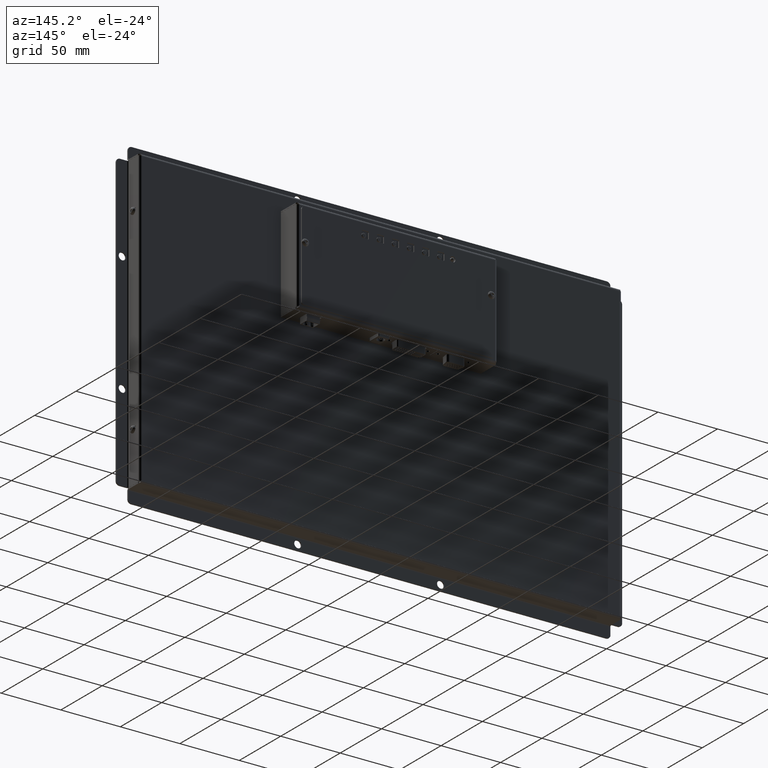
[diagram: clean part render]
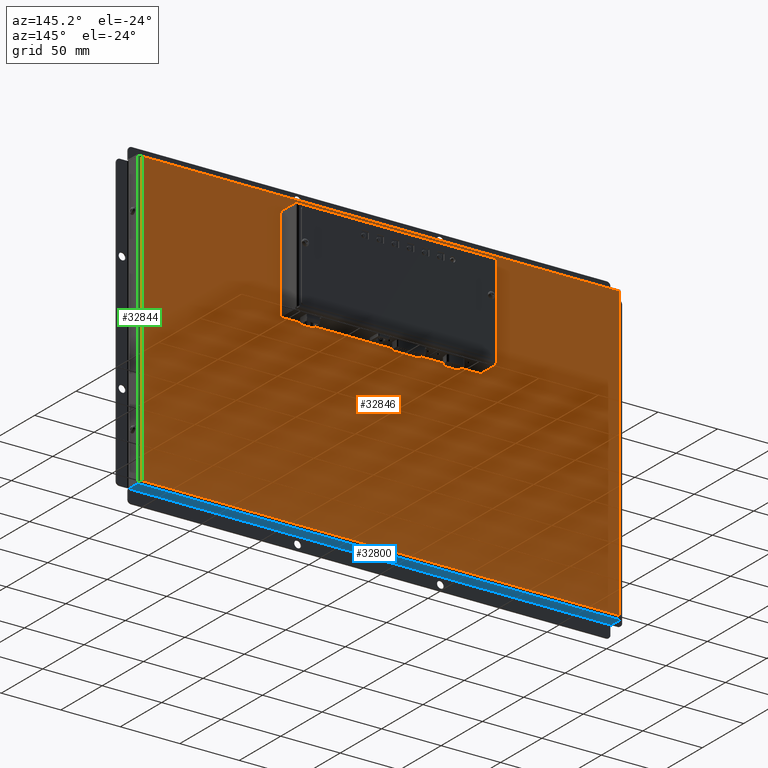
[diagram: same view with three faces highlighted in distinct colors, each labeled with its STEP entity id]
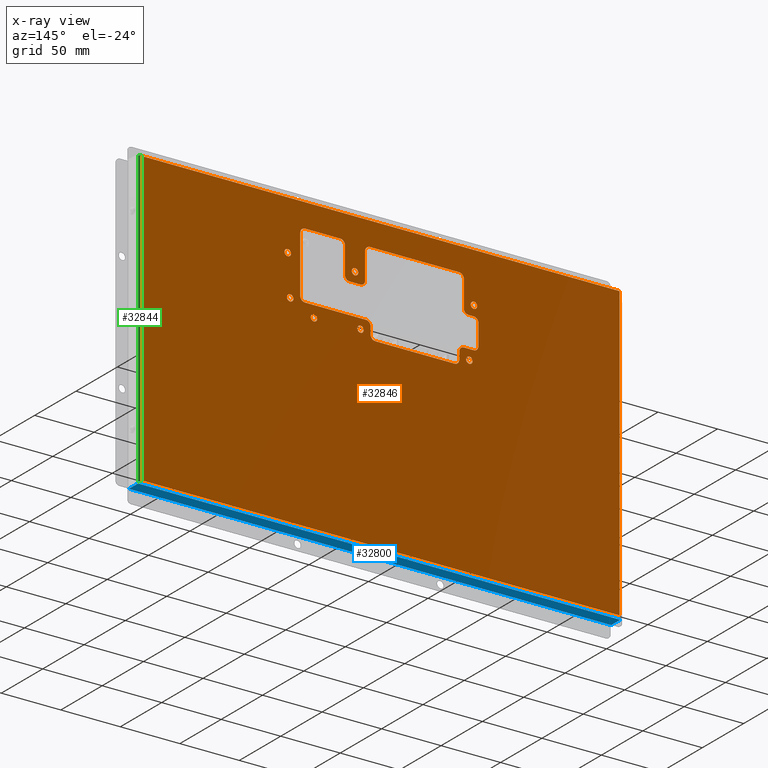
[diagram: x-ray of the same camera — body ghosted, the three highlighted faces saturated]
A machine part, auxiliary view with three faces highlighted in distinct colors.
The next image is the same camera in x-ray (body ghosted, the three faces saturated) — at least one of them is partly hidden behind the body in this view.
Their STEP definitions:

[orange] entity #32846 — the highlighted planar face has unit normal (0, 1, 0).
#1981=FACE_BOUND('',#5391,.T.);
#1982=FACE_BOUND('',#5392,.T.);
#1983=FACE_BOUND('',#5393,.T.);
#1984=FACE_BOUND('',#5394,.T.);
#1985=FACE_BOUND('',#5395,.T.);
#1986=FACE_BOUND('',#5396,.T.);
#1987=FACE_BOUND('',#5397,.T.);
#1988=FACE_BOUND('',#5398,.T.);
#2310=PLANE('',#35282);
#3501=FACE_OUTER_BOUND('',#5390,.T.);
#5390=EDGE_LOOP('',(#23546,#23547,#23548,#23549));
#5391=EDGE_LOOP('',(#23550,#23551));
#5392=EDGE_LOOP('',(#23552,#23553));
#5393=EDGE_LOOP('',(#23554,#23555));
#5394=EDGE_LOOP('',(#23556,#23557));
#5395=EDGE_LOOP('',(#23558,#23559));
#5396=EDGE_LOOP('',(#23560,#23561));
#5397=EDGE_LOOP('',(#23562,#23563));
#5398=EDGE_LOOP('',(#23564,#23565,#23566,#23567,#23568,#23569,#23570,#23571,
#23572,#23573,#23574,#23575,#23576,#23577,#23578,#23579,#23580,#23581,#23582,
#23583,#23584,#23585,#23586,#23587,#23588,#23589,#23590,#23591));
#7349=LINE('',#47318,#10488);
#7356=LINE('',#47336,#10495);
#7366=LINE('',#47418,#10505);
#7370=LINE('',#47429,#10509);
#7373=LINE('',#47433,#10512);
#7375=LINE('',#47442,#10514);
#7379=LINE('',#47454,#10518);
#7383=LINE('',#47466,#10522);
#7387=LINE('',#47478,#10526);
#7391=LINE('',#47490,#10530);
#7395=LINE('',#47502,#10534);
#7399=LINE('',#47514,#10538);
#7403=LINE('',#47526,#10542);
#7407=LINE('',#47538,#10546);
#7583=LINE('',#48155,#10722);
#7591=LINE('',#48441,#10730);
#7596=LINE('',#48581,#10735);
#7597=LINE('',#48583,#10736);
#10488=VECTOR('',#38070,10.);
#10495=VECTOR('',#38085,10.);
#10505=VECTOR('',#38173,10.);
#10509=VECTOR('',#38185,10.);
#10512=VECTOR('',#38190,10.);
#10514=VECTOR('',#38200,10.);
#10518=VECTOR('',#38212,10.);
#10522=VECTOR('',#38224,10.);
#10526=VECTOR('',#38236,10.);
#10530=VECTOR('',#38248,10.);
#10534=VECTOR('',#38260,10.);
#10538=VECTOR('',#38272,10.);
#10542=VECTOR('',#38284,10.);
#10546=VECTOR('',#38296,10.);
#10722=VECTOR('',#38832,10.);
#10730=VECTOR('',#38850,10.);
#10735=VECTOR('',#38863,10.);
#10736=VECTOR('',#38866,10.);
#13625=CIRCLE('',#35004,4.);
#13628=CIRCLE('',#35009,4.);
#13629=CIRCLE('',#35012,2.705);
#13630=CIRCLE('',#35013,2.705);
#13633=CIRCLE('',#35017,2.705);
#13634=CIRCLE('',#35018,2.705);
#13637=CIRCLE('',#35022,2.705);
#13638=CIRCLE('',#35023,2.705);
#13641=CIRCLE('',#35027,2.705);
#13642=CIRCLE('',#35028,2.705);
#13645=CIRCLE('',#35032,2.705);
#13646=CIRCLE('',#35033,2.705);
#13649=CIRCLE('',#35037,2.705);
#13650=CIRCLE('',#35038,2.705);
#13653=CIRCLE('',#35042,2.705);
#13654=CIRCLE('',#35043,2.705);
#13657=CIRCLE('',#35047,4.);
#13659=CIRCLE('',#35051,4.00000000000001);
#13661=CIRCLE('',#35056,4.);
#13663=CIRCLE('',#35060,4.);
#13665=CIRCLE('',#35064,4.);
#13667=CIRCLE('',#35068,4.);
#13669=CIRCLE('',#35072,4.);
#13671=CIRCLE('',#35076,4.);
#13673=CIRCLE('',#35080,4.);
#13675=CIRCLE('',#35084,4.);
#13677=CIRCLE('',#35088,4.);
#13679=CIRCLE('',#35092,4.);
#14918=VERTEX_POINT('',#47308);
#14919=VERTEX_POINT('',#47309);
#14922=VERTEX_POINT('',#47317);
#14926=VERTEX_POINT('',#47326);
#14927=VERTEX_POINT('',#47328);
#14929=VERTEX_POINT('',#47334);
#14930=VERTEX_POINT('',#47338);
#14931=VERTEX_POINT('',#47339);
#14934=VERTEX_POINT('',#47348);
#14935=VERTEX_POINT('',#47349);
#14938=VERTEX_POINT('',#47358);
#14939=VERTEX_POINT('',#47359);
#14942=VERTEX_POINT('',#47368);
#14943=VERTEX_POINT('',#47369);
#14946=VERTEX_POINT('',#47378);
#14947=VERTEX_POINT('',#47379);
#14950=VERTEX_POINT('',#47388);
#14951=VERTEX_POINT('',#47389);
#14954=VERTEX_POINT('',#47398);
#14955=VERTEX_POINT('',#47399);
#14958=VERTEX_POINT('',#47408);
#14959=VERTEX_POINT('',#47409);
#14962=VERTEX_POINT('',#47417);
#14964=VERTEX_POINT('',#47423);
#14966=VERTEX_POINT('',#47435);
#14968=VERTEX_POINT('',#47441);
#14970=VERTEX_POINT('',#47447);
#14972=VERTEX_POINT('',#47453);
#14974=VERTEX_POINT('',#47459);
#14976=VERTEX_POINT('',#47465);
#14978=VERTEX_POINT('',#47471);
#14980=VERTEX_POINT('',#47477);
#14982=VERTEX_POINT('',#47483);
#14984=VERTEX_POINT('',#47489);
#14986=VERTEX_POINT('',#47495);
#14988=VERTEX_POINT('',#47501);
#14990=VERTEX_POINT('',#47507);
#14992=VERTEX_POINT('',#47513);
#14994=VERTEX_POINT('',#47519);
#14996=VERTEX_POINT('',#47525);
#14998=VERTEX_POINT('',#47531);
#15000=VERTEX_POINT('',#47537);
#15164=VERTEX_POINT('',#48128);
#15166=VERTEX_POINT('',#48147);
#15171=VERTEX_POINT('',#48416);
#15172=VERTEX_POINT('',#48433);
#18056=EDGE_CURVE('',#14918,#14919,#13625,.T.);
#18060=EDGE_CURVE('',#14922,#14919,#7349,.T.);
#18065=EDGE_CURVE('',#14926,#14927,#13628,.T.);
#18069=EDGE_CURVE('',#14926,#14929,#7356,.T.);
#18070=EDGE_CURVE('',#14930,#14931,#13629,.T.);
#18071=EDGE_CURVE('',#14931,#14930,#13630,.T.);
#18075=EDGE_CURVE('',#14934,#14935,#13633,.T.);
#18076=EDGE_CURVE('',#14935,#14934,#13634,.T.);
#18080=EDGE_CURVE('',#14938,#14939,#13637,.T.);
#18081=EDGE_CURVE('',#14939,#14938,#13638,.T.);
#18085=EDGE_CURVE('',#14942,#14943,#13641,.T.);
#18086=EDGE_CURVE('',#14943,#14942,#13642,.T.);
#18090=EDGE_CURVE('',#14946,#14947,#13645,.T.);
#18091=EDGE_CURVE('',#14947,#14946,#13646,.T.);
#18095=EDGE_CURVE('',#14950,#14951,#13649,.T.);
#18096=EDGE_CURVE('',#14951,#14950,#13650,.T.);
#18100=EDGE_CURVE('',#14954,#14955,#13653,.T.);
#18101=EDGE_CURVE('',#14955,#14954,#13654,.T.);
#18105=EDGE_CURVE('',#14958,#14959,#13657,.T.);
#18109=EDGE_CURVE('',#14959,#14962,#7366,.T.);
#18112=EDGE_CURVE('',#14962,#14964,#13659,.T.);
#18115=EDGE_CURVE('',#14964,#14927,#7370,.T.);
#18118=EDGE_CURVE('',#14918,#14958,#7373,.T.);
#18119=EDGE_CURVE('',#14966,#14922,#13661,.T.);
#18122=EDGE_CURVE('',#14968,#14966,#7375,.T.);
#18125=EDGE_CURVE('',#14970,#14968,#13663,.T.);
#18128=EDGE_CURVE('',#14972,#14970,#7379,.T.);
#18131=EDGE_CURVE('',#14974,#14972,#13665,.T.);
#18134=EDGE_CURVE('',#14976,#14974,#7383,.T.);
#18137=EDGE_CURVE('',#14978,#14976,#13667,.T.);
#18140=EDGE_CURVE('',#14980,#14978,#7387,.T.);
#18143=EDGE_CURVE('',#14982,#14980,#13669,.T.);
#18146=EDGE_CURVE('',#14984,#14982,#7391,.T.);
#18149=EDGE_CURVE('',#14986,#14984,#13671,.T.);
#18152=EDGE_CURVE('',#14988,#14986,#7395,.T.);
#18155=EDGE_CURVE('',#14990,#14988,#13673,.T.);
#18158=EDGE_CURVE('',#14992,#14990,#7399,.T.);
#18161=EDGE_CURVE('',#14994,#14992,#13675,.T.);
#18164=EDGE_CURVE('',#14996,#14994,#7403,.T.);
#18167=EDGE_CURVE('',#14998,#14996,#13677,.T.);
#18170=EDGE_CURVE('',#15000,#14998,#7407,.T.);
#18173=EDGE_CURVE('',#14929,#15000,#13679,.T.);
#18434=EDGE_CURVE('',#15164,#15166,#7583,.T.);
#18455=EDGE_CURVE('',#15171,#15172,#7591,.T.);
#18465=EDGE_CURVE('',#15172,#15164,#7596,.T.);
#18466=EDGE_CURVE('',#15166,#15171,#7597,.T.);
#23546=ORIENTED_EDGE('',*,*,#18465,.T.);
#23547=ORIENTED_EDGE('',*,*,#18434,.T.);
#23548=ORIENTED_EDGE('',*,*,#18466,.T.);
#23549=ORIENTED_EDGE('',*,*,#18455,.T.);
#23550=ORIENTED_EDGE('',*,*,#18070,.T.);
#23551=ORIENTED_EDGE('',*,*,#18071,.T.);
#23552=ORIENTED_EDGE('',*,*,#18075,.T.);
#23553=ORIENTED_EDGE('',*,*,#18076,.T.);
#23554=ORIENTED_EDGE('',*,*,#18080,.T.);
#23555=ORIENTED_EDGE('',*,*,#18081,.T.);
#23556=ORIENTED_EDGE('',*,*,#18085,.T.);
#23557=ORIENTED_EDGE('',*,*,#18086,.T.);
#23558=ORIENTED_EDGE('',*,*,#18090,.T.);
#23559=ORIENTED_EDGE('',*,*,#18091,.T.);
#23560=ORIENTED_EDGE('',*,*,#18095,.T.);
#23561=ORIENTED_EDGE('',*,*,#18096,.T.);
#23562=ORIENTED_EDGE('',*,*,#18100,.T.);
#23563=ORIENTED_EDGE('',*,*,#18101,.T.);
#23564=ORIENTED_EDGE('',*,*,#18119,.T.);
#23565=ORIENTED_EDGE('',*,*,#18060,.T.);
#23566=ORIENTED_EDGE('',*,*,#18056,.F.);
#23567=ORIENTED_EDGE('',*,*,#18118,.T.);
#23568=ORIENTED_EDGE('',*,*,#18105,.T.);
#23569=ORIENTED_EDGE('',*,*,#18109,.T.);
#23570=ORIENTED_EDGE('',*,*,#18112,.T.);
#23571=ORIENTED_EDGE('',*,*,#18115,.T.);
#23572=ORIENTED_EDGE('',*,*,#18065,.F.);
#23573=ORIENTED_EDGE('',*,*,#18069,.T.);
#23574=ORIENTED_EDGE('',*,*,#18173,.T.);
#23575=ORIENTED_EDGE('',*,*,#18170,.T.);
#23576=ORIENTED_EDGE('',*,*,#18167,.T.);
#23577=ORIENTED_EDGE('',*,*,#18164,.T.);
#23578=ORIENTED_EDGE('',*,*,#18161,.T.);
#23579=ORIENTED_EDGE('',*,*,#18158,.T.);
#23580=ORIENTED_EDGE('',*,*,#18155,.T.);
#23581=ORIENTED_EDGE('',*,*,#18152,.T.);
#23582=ORIENTED_EDGE('',*,*,#18149,.T.);
#23583=ORIENTED_EDGE('',*,*,#18146,.T.);
#23584=ORIENTED_EDGE('',*,*,#18143,.T.);
#23585=ORIENTED_EDGE('',*,*,#18140,.T.);
#23586=ORIENTED_EDGE('',*,*,#18137,.T.);
#23587=ORIENTED_EDGE('',*,*,#18134,.T.);
#23588=ORIENTED_EDGE('',*,*,#18131,.T.);
#23589=ORIENTED_EDGE('',*,*,#18128,.T.);
#23590=ORIENTED_EDGE('',*,*,#18125,.T.);
#23591=ORIENTED_EDGE('',*,*,#18122,.T.);
#32846=ADVANCED_FACE('',(#3501,#1981,#1982,#1983,#1984,#1985,#1986,#1987,
#1988),#2310,.T.);
#35004=AXIS2_PLACEMENT_3D('',#47310,#38062,#38063);
#35009=AXIS2_PLACEMENT_3D('',#47329,#38078,#38079);
#35012=AXIS2_PLACEMENT_3D('',#47340,#38088,#38089);
#35013=AXIS2_PLACEMENT_3D('',#47341,#38090,#38091);
#35017=AXIS2_PLACEMENT_3D('',#47350,#38099,#38100);
#35018=AXIS2_PLACEMENT_3D('',#47351,#38101,#38102);
#35022=AXIS2_PLACEMENT_3D('',#47360,#38110,#38111);
#35023=AXIS2_PLACEMENT_3D('',#47361,#38112,#38113);
#35027=AXIS2_PLACEMENT_3D('',#47370,#38121,#38122);
#35028=AXIS2_PLACEMENT_3D('',#47371,#38123,#38124);
#35032=AXIS2_PLACEMENT_3D('',#47380,#38132,#38133);
#35033=AXIS2_PLACEMENT_3D('',#47381,#38134,#38135);
#35037=AXIS2_PLACEMENT_3D('',#47390,#38143,#38144);
#35038=AXIS2_PLACEMENT_3D('',#47391,#38145,#38146);
#35042=AXIS2_PLACEMENT_3D('',#47400,#38154,#38155);
#35043=AXIS2_PLACEMENT_3D('',#47401,#38156,#38157);
#35047=AXIS2_PLACEMENT_3D('',#47410,#38165,#38166);
#35051=AXIS2_PLACEMENT_3D('',#47424,#38178,#38179);
#35056=AXIS2_PLACEMENT_3D('',#47436,#38193,#38194);
#35060=AXIS2_PLACEMENT_3D('',#47448,#38205,#38206);
#35064=AXIS2_PLACEMENT_3D('',#47460,#38217,#38218);
#35068=AXIS2_PLACEMENT_3D('',#47472,#38229,#38230);
#35072=AXIS2_PLACEMENT_3D('',#47484,#38241,#38242);
#35076=AXIS2_PLACEMENT_3D('',#47496,#38253,#38254);
#35080=AXIS2_PLACEMENT_3D('',#47508,#38265,#38266);
#35084=AXIS2_PLACEMENT_3D('',#47520,#38277,#38278);
#35088=AXIS2_PLACEMENT_3D('',#47532,#38289,#38290);
#35092=AXIS2_PLACEMENT_3D('',#47543,#38301,#38302);
#35282=AXIS2_PLACEMENT_3D('',#48585,#38869,#38870);
#38062=DIRECTION('center_axis',(0.,0.,1.));
#38063=DIRECTION('ref_axis',(0.707106781186549,0.707106781186546,0.));
#38070=DIRECTION('',(1.,-6.02154860813605E-16,0.));
#38078=DIRECTION('center_axis',(0.,0.,1.));
#38079=DIRECTION('ref_axis',(-0.707106781186545,0.70710678118655,0.));
#38085=DIRECTION('',(1.,-6.02154860813605E-16,0.));
#38088=DIRECTION('center_axis',(0.,0.,-1.));
#38089=DIRECTION('ref_axis',(1.,0.,0.));
#38090=DIRECTION('center_axis',(0.,0.,-1.));
#38091=DIRECTION('ref_axis',(1.,0.,0.));
#38099=DIRECTION('center_axis',(0.,0.,-1.));
#38100=DIRECTION('ref_axis',(1.,0.,0.));
#38101=DIRECTION('center_axis',(0.,0.,-1.));
#38102=DIRECTION('ref_axis',(1.,0.,0.));
#38110=DIRECTION('center_axis',(0.,0.,-1.));
#38111=DIRECTION('ref_axis',(1.,0.,0.));
#38112=DIRECTION('center_axis',(0.,0.,-1.));
#38113=DIRECTION('ref_axis',(1.,0.,0.));
#38121=DIRECTION('center_axis',(0.,0.,-1.));
#38122=DIRECTION('ref_axis',(1.,0.,0.));
#38123=DIRECTION('center_axis',(0.,0.,-1.));
#38124=DIRECTION('ref_axis',(1.,0.,0.));
#38132=DIRECTION('center_axis',(0.,0.,-1.));
#38133=DIRECTION('ref_axis',(1.,0.,0.));
#38134=DIRECTION('center_axis',(0.,0.,-1.));
#38135=DIRECTION('ref_axis',(1.,0.,0.));
#38143=DIRECTION('center_axis',(0.,0.,-1.));
#38144=DIRECTION('ref_axis',(1.,0.,0.));
#38145=DIRECTION('center_axis',(0.,0.,-1.));
#38146=DIRECTION('ref_axis',(1.,0.,0.));
#38154=DIRECTION('center_axis',(0.,0.,-1.));
#38155=DIRECTION('ref_axis',(1.,0.,0.));
#38156=DIRECTION('center_axis',(0.,0.,-1.));
#38157=DIRECTION('ref_axis',(1.,0.,0.));
#38165=DIRECTION('center_axis',(0.,0.,1.));
#38166=DIRECTION('ref_axis',(-1.,0.,0.));
#38173=DIRECTION('',(1.,0.,0.));
#38178=DIRECTION('center_axis',(0.,0.,1.));
#38179=DIRECTION('ref_axis',(1.66533453693773E-15,-1.,0.));
#38185=DIRECTION('',(0.,1.,0.));
#38190=DIRECTION('',(5.04646829375071E-16,-1.,0.));
#38193=DIRECTION('center_axis',(0.,0.,-1.));
#38194=DIRECTION('ref_axis',(0.,1.,0.));
#38200=DIRECTION('',(-1.11022302462523E-14,1.,0.));
#38205=DIRECTION('center_axis',(0.,0.,-1.));
#38206=DIRECTION('ref_axis',(-1.,0.,0.));
#38212=DIRECTION('',(-1.,-1.73811823816071E-16,0.));
#38217=DIRECTION('center_axis',(0.,0.,1.));
#38218=DIRECTION('ref_axis',(-1.,0.,0.));
#38224=DIRECTION('',(-7.16272919113008E-16,1.,0.));
#38229=DIRECTION('center_axis',(0.,0.,-1.));
#38230=DIRECTION('ref_axis',(-1.,-1.11022302462516E-15,0.));
#38236=DIRECTION('',(-1.,-4.67462326157968E-16,0.));
#38241=DIRECTION('center_axis',(0.,0.,-1.));
#38242=DIRECTION('ref_axis',(0.,-1.,0.));
#38248=DIRECTION('',(-1.43254583822601E-15,-1.,0.));
#38253=DIRECTION('center_axis',(0.,0.,1.));
#38254=DIRECTION('ref_axis',(2.22044604925031E-15,-1.,0.));
#38260=DIRECTION('',(-1.,0.,0.));
#38265=DIRECTION('center_axis',(0.,0.,-1.));
#38266=DIRECTION('ref_axis',(0.,-1.,0.));
#38272=DIRECTION('',(0.,-1.,0.));
#38277=DIRECTION('center_axis',(0.,0.,-1.));
#38278=DIRECTION('ref_axis',(1.,0.,0.));
#38284=DIRECTION('',(1.,2.06553120860501E-15,0.));
#38289=DIRECTION('center_axis',(0.,0.,1.));
#38290=DIRECTION('ref_axis',(1.,0.,0.));
#38296=DIRECTION('',(-3.98286286861046E-16,-1.,0.));
#38301=DIRECTION('center_axis',(0.,0.,-1.));
#38302=DIRECTION('ref_axis',(1.,0.,0.));
#38832=DIRECTION('',(-1.,0.,0.));
#38850=DIRECTION('',(1.,8.81020131134656E-17,0.));
#38863=DIRECTION('',(0.,1.,0.));
#38866=DIRECTION('',(0.,-1.,0.));
#38869=DIRECTION('center_axis',(0.,0.,1.));
#38870=DIRECTION('ref_axis',(1.,0.,0.));
#47308=CARTESIAN_POINT('',(-30.2000000000035,98.2999999999999,1.));
#47309=CARTESIAN_POINT('',(-34.2000000000035,102.3,1.));
#47310=CARTESIAN_POINT('Origin',(-34.2000000000035,98.2999999999999,1.));
#47317=CARTESIAN_POINT('',(-63.7000000000035,102.3,1.));
#47318=CARTESIAN_POINT('',(-31.9675561272377,102.3,1.));
#47326=CARTESIAN_POINT('',(-9.20000000000353,102.3,1.));
#47328=CARTESIAN_POINT('',(-13.2000000000035,98.2999999999999,1.));
#47329=CARTESIAN_POINT('Origin',(-9.20000000000353,98.2999999999999,1.));
#47334=CARTESIAN_POINT('',(65.6999999999986,102.3,1.));
#47336=CARTESIAN_POINT('',(-31.9675561272377,102.3,1.));
#47338=CARTESIAN_POINT('',(-75.4950000000014,80.5000000000001,1.));
#47339=CARTESIAN_POINT('',(-80.9050000000014,80.5000000000001,1.));
#47340=CARTESIAN_POINT('Origin',(-78.2000000000014,80.5000000000001,1.));
#47341=CARTESIAN_POINT('Origin',(-78.2000000000014,80.5000000000001,1.));
#47348=CARTESIAN_POINT('',(80.9049999999986,80.5000000000001,1.));
#47349=CARTESIAN_POINT('',(75.4949999999986,80.5000000000001,1.));
#47350=CARTESIAN_POINT('Origin',(78.1999999999986,80.5000000000001,1.));
#47351=CARTESIAN_POINT('Origin',(78.1999999999986,80.5000000000001,1.));
#47358=CARTESIAN_POINT('',(-53.4950000000003,36.7999999999994,1.));
#47359=CARTESIAN_POINT('',(-58.9050000000003,36.7999999999994,1.));
#47360=CARTESIAN_POINT('Origin',(-56.2000000000003,36.7999999999994,1.));
#47361=CARTESIAN_POINT('Origin',(-56.2000000000003,36.7999999999994,1.));
#47368=CARTESIAN_POINT('',(-73.4950000000035,46.7999999999994,1.));
#47369=CARTESIAN_POINT('',(-78.9050000000035,46.7999999999994,1.));
#47370=CARTESIAN_POINT('Origin',(-76.2000000000035,46.7999999999994,1.));
#47371=CARTESIAN_POINT('Origin',(-76.2000000000035,46.7999999999994,1.));
#47378=CARTESIAN_POINT('',(-14.3950000000033,38.1999999999994,1.));
#47379=CARTESIAN_POINT('',(-19.8050000000033,38.1999999999994,1.));
#47380=CARTESIAN_POINT('Origin',(-17.1000000000033,38.1999999999994,1.));
#47381=CARTESIAN_POINT('Origin',(-17.1000000000033,38.1999999999994,1.));
#47388=CARTESIAN_POINT('',(77.1049999999957,37.9999999999995,1.));
#47389=CARTESIAN_POINT('',(71.6949999999957,37.9999999999995,1.));
#47390=CARTESIAN_POINT('Origin',(74.3999999999957,37.9999999999995,1.));
#47391=CARTESIAN_POINT('Origin',(74.3999999999957,37.9999999999995,1.));
#47398=CARTESIAN_POINT('',(-18.9950000000035,80.3999999999999,1.));
#47399=CARTESIAN_POINT('',(-24.4050000000035,80.3999999999999,1.));
#47400=CARTESIAN_POINT('Origin',(-21.7000000000035,80.3999999999999,1.));
#47401=CARTESIAN_POINT('Origin',(-21.7000000000035,80.3999999999999,1.));
#47408=CARTESIAN_POINT('',(-30.2000000000035,75.8999999999999,1.));
#47409=CARTESIAN_POINT('',(-26.2000000000035,71.8999999999999,1.));
#47410=CARTESIAN_POINT('Origin',(-26.2000000000035,75.8999999999999,1.));
#47417=CARTESIAN_POINT('',(-17.2000000000035,71.8999999999999,1.));
#47418=CARTESIAN_POINT('',(-8.71755612723772,71.8999999999999,1.));
#47423=CARTESIAN_POINT('',(-13.2000000000035,75.8999999999999,1.));
#47424=CARTESIAN_POINT('Origin',(-17.2000000000035,75.8999999999999,1.));
#47429=CARTESIAN_POINT('',(-13.2000000000035,51.025,1.));
#47433=CARTESIAN_POINT('',(-30.2000000000035,37.825,1.));
#47435=CARTESIAN_POINT('',(-67.7000000000035,98.2999999999999,1.));
#47436=CARTESIAN_POINT('Origin',(-63.7000000000035,98.2999999999999,1.));
#47441=CARTESIAN_POINT('',(-67.7000000000035,50.4999999999994,1.));
#47442=CARTESIAN_POINT('',(-67.7000000000032,25.1249999999994,1.));
#47447=CARTESIAN_POINT('',(-63.7000000000035,46.4999999999994,1.));
#47448=CARTESIAN_POINT('Origin',(-63.7000000000035,50.4999999999994,1.));
#47453=CARTESIAN_POINT('',(-12.6000000000033,46.4999999999995,1.));
#47454=CARTESIAN_POINT('',(-6.4175561272376,46.4999999999995,1.));
#47459=CARTESIAN_POINT('',(-8.60000000000328,42.4999999999994,1.));
#47460=CARTESIAN_POINT('Origin',(-12.6000000000033,42.4999999999994,1.));
#47465=CARTESIAN_POINT('',(-8.60000000000328,36.2999999999995,1.));
#47466=CARTESIAN_POINT('',(-8.60000000000327,18.0249999999997,1.));
#47471=CARTESIAN_POINT('',(-4.60000000000328,32.2999999999995,1.));
#47472=CARTESIAN_POINT('Origin',(-4.60000000000329,36.2999999999995,1.));
#47477=CARTESIAN_POINT('',(61.8999999999957,32.2999999999995,1.));
#47478=CARTESIAN_POINT('',(30.8324438727619,32.2999999999995,1.));
#47483=CARTESIAN_POINT('',(65.8999999999957,36.2999999999995,1.));
#47484=CARTESIAN_POINT('Origin',(61.8999999999957,36.2999999999995,1.));
#47489=CARTESIAN_POINT('',(65.8999999999957,42.4999999999995,1.));
#47490=CARTESIAN_POINT('',(65.8999999999957,21.1249999999997,1.));
#47495=CARTESIAN_POINT('',(69.8999999999957,46.4999999999995,1.));
#47496=CARTESIAN_POINT('Origin',(69.8999999999957,42.4999999999995,1.));
#47501=CARTESIAN_POINT('',(77.9999999999985,46.4999999999995,1.));
#47502=CARTESIAN_POINT('',(38.8824438727633,46.4999999999995,1.));
#47507=CARTESIAN_POINT('',(81.9999999999985,50.4999999999995,1.));
#47508=CARTESIAN_POINT('Origin',(77.9999999999985,50.4999999999995,1.));
#47513=CARTESIAN_POINT('',(81.9999999999985,68.0000000000001,1.));
#47514=CARTESIAN_POINT('',(81.9999999999985,33.875,1.));
#47519=CARTESIAN_POINT('',(77.9999999999985,72.0000000000001,1.));
#47520=CARTESIAN_POINT('Origin',(77.9999999999985,68.0000000000001,1.));
#47525=CARTESIAN_POINT('',(73.6999999999986,72.0000000000001,1.));
#47526=CARTESIAN_POINT('',(36.7324438727633,72.,1.));
#47531=CARTESIAN_POINT('',(69.6999999999986,76.0000000000001,1.));
#47532=CARTESIAN_POINT('Origin',(73.6999999999986,76.0000000000001,1.));
#47537=CARTESIAN_POINT('',(69.6999999999986,98.2999999999999,1.));
#47538=CARTESIAN_POINT('',(69.6999999999986,49.0249999999999,1.));
#47543=CARTESIAN_POINT('Origin',(65.6999999999986,98.2999999999999,1.));
#48128=CARTESIAN_POINT('',(200.625,122.3,1.));
#48147=CARTESIAN_POINT('',(-200.625,122.3,1.));
#48155=CARTESIAN_POINT('',(100.694943872764,122.3,1.));
#48416=CARTESIAN_POINT('',(-200.625,-122.7,1.));
#48433=CARTESIAN_POINT('',(200.625,-122.7,1.));
#48441=CARTESIAN_POINT('',(-100.930056127236,-122.7,1.));
#48581=CARTESIAN_POINT('',(200.625,-61.475,1.));
#48583=CARTESIAN_POINT('',(-200.625,61.025,1.));
#48585=CARTESIAN_POINT('Origin',(-0.235112254471912,-0.249999999999987,
1.));

[blue] entity #32800 — the highlighted planar face has unit normal (0, -0, -1).
#2288=PLANE('',#35240);
#3455=FACE_OUTER_BOUND('',#5324,.T.);
#5324=EDGE_LOOP('',(#23248,#23249,#23250,#23251));
#7540=LINE('',#47954,#10679);
#7546=LINE('',#47967,#10685);
#7547=LINE('',#47969,#10686);
#7548=LINE('',#47970,#10687);
#10679=VECTOR('',#38723,10.);
#10685=VECTOR('',#38735,10.);
#10686=VECTOR('',#38736,10.);
#10687=VECTOR('',#38737,10.);
#15135=VERTEX_POINT('',#47945);
#15136=VERTEX_POINT('',#47949);
#15140=VERTEX_POINT('',#47966);
#15141=VERTEX_POINT('',#47968);
#18377=EDGE_CURVE('',#15135,#15136,#7540,.T.);
#18383=EDGE_CURVE('',#15140,#15136,#7546,.T.);
#18384=EDGE_CURVE('',#15140,#15141,#7547,.T.);
#18385=EDGE_CURVE('',#15141,#15135,#7548,.T.);
#23248=ORIENTED_EDGE('',*,*,#18377,.T.);
#23249=ORIENTED_EDGE('',*,*,#18383,.F.);
#23250=ORIENTED_EDGE('',*,*,#18384,.T.);
#23251=ORIENTED_EDGE('',*,*,#18385,.T.);
#32800=ADVANCED_FACE('',(#3455),#2288,.T.);
#35240=AXIS2_PLACEMENT_3D('',#47965,#38733,#38734);
#38723=DIRECTION('',(1.,8.77196548976972E-17,4.65805677104248E-34));
#38733=DIRECTION('center_axis',(8.77196548976972E-17,-1.,-8.57020736283933E-15));
#38734=DIRECTION('ref_axis',(1.,8.77196548976979E-17,-8.81020131134656E-17));
#38735=DIRECTION('',(5.46571335200077E-15,8.19857002800116E-15,-1.));
#38736=DIRECTION('',(-1.,-8.77196548976972E-17,3.37261047015213E-33));
#38737=DIRECTION('',(-5.46571335200075E-15,9.56499836600131E-15,-1.));
#47945=CARTESIAN_POINT('',(-202.625,-124.7,-12.));
#47949=CARTESIAN_POINT('',(202.625,-124.7,-12.));
#47954=CARTESIAN_POINT('',(101.3125,-124.7,-12.));
#47965=CARTESIAN_POINT('Origin',(1.89328028425507E-14,-124.7,-6.36902664470773));
#47966=CARTESIAN_POINT('',(202.625,-124.7,-1.00000000000007));
#47967=CARTESIAN_POINT('',(202.625,-124.7,-1.00000000000003));
#47968=CARTESIAN_POINT('',(-202.625,-124.7,-0.99999999999996));
#47969=CARTESIAN_POINT('',(2.73179647680909E-14,-124.7,-1.00000000000001));
#47970=CARTESIAN_POINT('',(-202.625,-124.7,-0.999999999999961));

[green] entity #32844 — the highlighted cylindrical surface (edge-blend (fillet) strip) has radius 2 mm, axis along (0, 0, -1).
#1699=B_SPLINE_CURVE_WITH_KNOTS('',3,(#48277,#48278,#48279,#48280),
 .UNSPECIFIED.,.F.,.F.,(4,4),(-1.,-0.763258696678558),.UNSPECIFIED.);
#1701=B_SPLINE_CURVE_WITH_KNOTS('',3,(#48331,#48332,#48333,#48334,#48335,
#48336,#48337),.UNSPECIFIED.,.F.,.F.,(4,3,4),(-0.763258696678558,-0.32711087001288,
0.),.UNSPECIFIED.);
#1705=B_SPLINE_CURVE_WITH_KNOTS('',3,(#48418,#48419,#48420,#48421,#48422,
#48423,#48424),.UNSPECIFIED.,.F.,.F.,(4,3,4),(-0.763258696678548,-0.327110870012867,
0.),.UNSPECIFIED.);
#1708=B_SPLINE_CURVE_WITH_KNOTS('',3,(#48484,#48485,#48486,#48487),
 .UNSPECIFIED.,.F.,.F.,(4,4),(-1.,-0.763258696678548),.UNSPECIFIED.);
#3499=FACE_OUTER_BOUND('',#5380,.T.);
#5380=EDGE_LOOP('',(#23494,#23495,#23496,#23497,#23498,#23499));
#7574=LINE('',#48039,#10713);
#7597=LINE('',#48583,#10736);
#10713=VECTOR('',#38815,10.);
#10736=VECTOR('',#38866,10.);
#15157=VERTEX_POINT('',#48036);
#15158=VERTEX_POINT('',#48038);
#15166=VERTEX_POINT('',#48147);
#15167=VERTEX_POINT('',#48260);
#15170=VERTEX_POINT('',#48403);
#15171=VERTEX_POINT('',#48416);
#18419=EDGE_CURVE('',#15157,#15158,#7574,.T.);
#18442=EDGE_CURVE('',#15158,#15167,#1699,.T.);
#18446=EDGE_CURVE('',#15167,#15166,#1701,.T.);
#18452=EDGE_CURVE('',#15170,#15171,#1705,.T.);
#18457=EDGE_CURVE('',#15157,#15170,#1708,.T.);
#18466=EDGE_CURVE('',#15166,#15171,#7597,.T.);
#23494=ORIENTED_EDGE('',*,*,#18419,.F.);
#23495=ORIENTED_EDGE('',*,*,#18457,.T.);
#23496=ORIENTED_EDGE('',*,*,#18452,.T.);
#23497=ORIENTED_EDGE('',*,*,#18466,.F.);
#23498=ORIENTED_EDGE('',*,*,#18446,.F.);
#23499=ORIENTED_EDGE('',*,*,#18442,.F.);
#32278=CYLINDRICAL_SURFACE('',#35280,2.00000000000001);
#32844=ADVANCED_FACE('',(#3499),#32278,.T.);
#35280=AXIS2_PLACEMENT_3D('',#48582,#38864,#38865);
#38815=DIRECTION('',(-2.46914654667729E-18,1.,1.33094476877658E-32));
#38864=DIRECTION('center_axis',(0.,-1.,0.));
#38865=DIRECTION('ref_axis',(0.,0.,1.));
#38866=DIRECTION('',(0.,-1.,0.));
#48036=CARTESIAN_POINT('',(-202.625,-123.6,-1.00000000000003));
#48038=CARTESIAN_POINT('',(-202.625,123.2,-0.999999999999956));
#48039=CARTESIAN_POINT('',(-202.625,-0.200000000000028,-0.999999999999979));
#48147=CARTESIAN_POINT('',(-200.625,122.3,1.));
#48260=CARTESIAN_POINT('',(-202.488297267953,122.986932826998,-0.273279082987895));
#48277=CARTESIAN_POINT('Ctrl Pts',(-202.625,123.2,-0.999999999999955));
#48278=CARTESIAN_POINT('Ctrl Pts',(-202.625,123.128977609005,-0.752085086894585));
#48279=CARTESIAN_POINT('Ctrl Pts',(-202.577177779838,123.057955218009,-0.503936625519833));
#48280=CARTESIAN_POINT('Ctrl Pts',(-202.487199776928,122.986932827012,-0.272611416083475));
#48331=CARTESIAN_POINT('Ctrl Pts',(-202.488297267955,122.986932827011,-0.273279082983114));
#48332=CARTESIAN_POINT('Ctrl Pts',(-202.322338578898,122.85608847901,0.152235532974523));
#48333=CARTESIAN_POINT('Ctrl Pts',(-202.005183812377,122.72524413101,0.516913369334676));
#48334=CARTESIAN_POINT('Ctrl Pts',(-201.608111594754,122.594399783012,0.741637586023797));
#48335=CARTESIAN_POINT('Ctrl Pts',(-201.310307431525,122.496266522009,0.910180748547656));
#48336=CARTESIAN_POINT('Ctrl Pts',(-200.967549702048,122.398133261007,1.));
#48337=CARTESIAN_POINT('Ctrl Pts',(-200.625,122.3,1.00000000000001));
#48403=CARTESIAN_POINT('',(-202.488297267953,-123.386932826998,-0.273279082987941));
#48416=CARTESIAN_POINT('',(-200.625,-122.7,1.));
#48418=CARTESIAN_POINT('Ctrl Pts',(-202.488297267955,-123.386932827011,
-0.273279082983139));
#48419=CARTESIAN_POINT('Ctrl Pts',(-202.322338578898,-123.256088479011,
0.152235532974566));
#48420=CARTESIAN_POINT('Ctrl Pts',(-202.005183805278,-123.125244131011,
0.51691335727555));
#48421=CARTESIAN_POINT('Ctrl Pts',(-201.60811158867,-122.994399783011,0.741637575687397));
#48422=CARTESIAN_POINT('Ctrl Pts',(-201.310307426201,-122.896266522007,
0.910180739503292));
#48423=CARTESIAN_POINT('Ctrl Pts',(-200.967549702048,-122.798133261004,
0.999999999999999));
#48424=CARTESIAN_POINT('Ctrl Pts',(-200.625,-122.7,1.00000000000001));
#48484=CARTESIAN_POINT('Ctrl Pts',(-202.625,-123.6,-1.00000000000003));
#48485=CARTESIAN_POINT('Ctrl Pts',(-202.625,-123.528977609002,-0.75208508689473));
#48486=CARTESIAN_POINT('Ctrl Pts',(-202.577177767987,-123.457955218005,
-0.503936639745943));
#48487=CARTESIAN_POINT('Ctrl Pts',(-202.487199753534,-123.386932827008,
-0.272611444167373));
#48582=CARTESIAN_POINT('Origin',(-200.625,-0.200000000000031,-1.));
#48583=CARTESIAN_POINT('',(-200.625,61.025,1.));